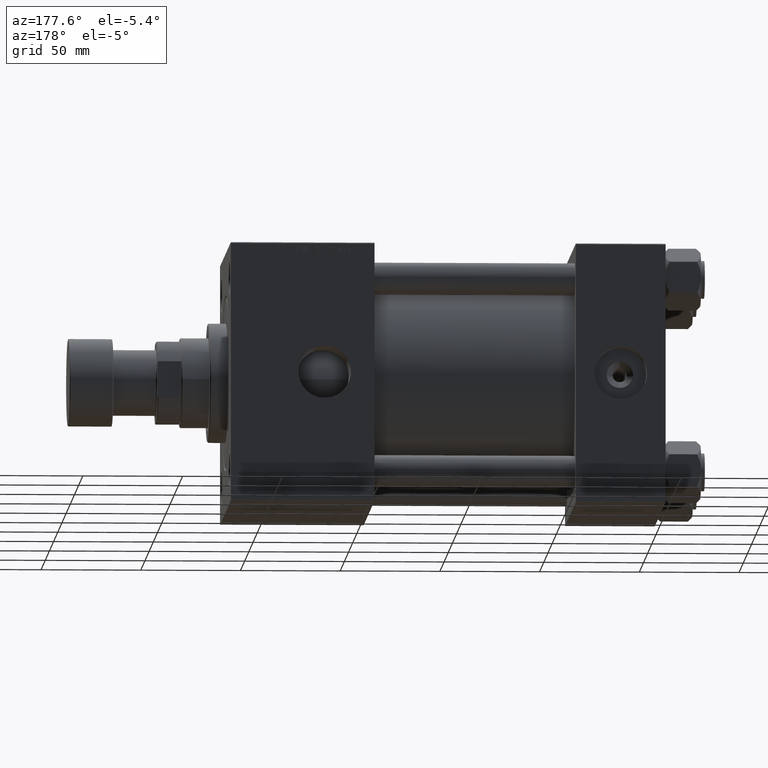
[diagram: clean part render]
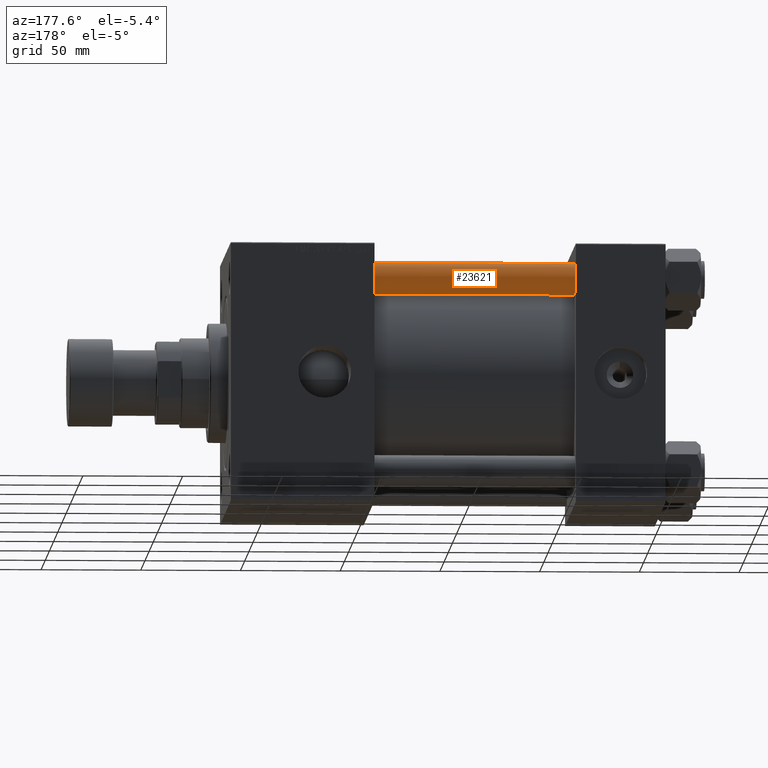
[diagram: same view with one face highlighted and labeled with its STEP entity id]
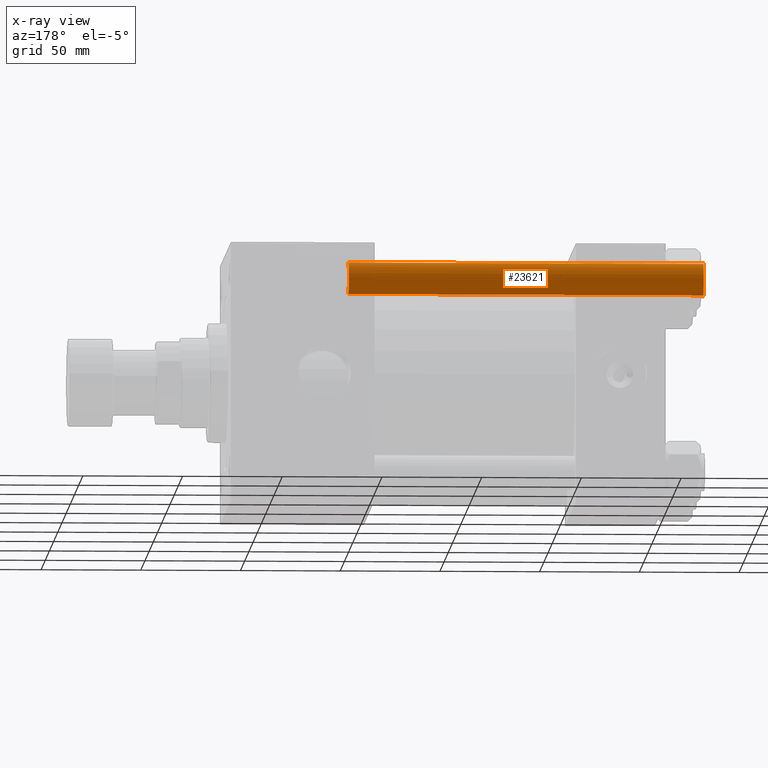
[diagram: x-ray of the same camera — body ghosted, the highlighted face saturated]
A machine part, auxiliary view. The second image highlights one B-rep face of the part: STEP entity #23621.
The next image is the same camera in x-ray: the body ghosted, the highlighted face saturated — about 0% of this face is hidden behind the body in this view.
In plain terms, the highlighted cylindrical surface (edge-blend (fillet) strip) has radius 8 mm, axis along (-1, 0, 0).
Its self-contained STEP definition (entity closure, byte-faithful):
#135 = CARTESIAN_POINT ( 'NONE',  ( 0.000000000000000000, 0.000000000000000000, 0.5000000000001392220 ) ) ;
#1865 = CIRCLE ( 'NONE', #13482, 8.000000000000000000 ) ;
#3379 = VERTEX_POINT ( 'NONE', #18921 ) ;
#4829 = VECTOR ( 'NONE', #24066, 1000.000000000000000 ) ;
#5172 = LINE ( 'NONE', #20969, #4829 ) ;
#5974 = CARTESIAN_POINT ( 'NONE',  ( -8.000000000000000000, 0.000000000000000000, 178.5000000000001137 ) ) ;
#6003 = VECTOR ( 'NONE', #22647, 1000.000000000000000 ) ;
#7097 = CYLINDRICAL_SURFACE ( 'NONE', #17241, 8.000000000000000000 ) ;
#7578 = CARTESIAN_POINT ( 'NONE',  ( 8.000000000000000000, 9.797174393178823685E-16, 178.5000000000001137 ) ) ;
#9905 = ORIENTED_EDGE ( 'NONE', *, *, #34943, .T. ) ;
#13482 = AXIS2_PLACEMENT_3D ( 'NONE', #135, #39774, #48060 ) ;
#15384 = DIRECTION ( 'NONE',  ( -0.000000000000000000, -0.000000000000000000, -1.000000000000000000 ) ) ;
#17241 = AXIS2_PLACEMENT_3D ( 'NONE', #35040, #15384, #26518 ) ;
#17310 = CIRCLE ( 'NONE', #26385, 8.000000000000000000 ) ;
#18921 = CARTESIAN_POINT ( 'NONE',  ( -8.000000000000000000, 0.000000000000000000, 0.5000000000001392220 ) ) ;
#19389 = VERTEX_POINT ( 'NONE', #5974 ) ;
#20375 = EDGE_LOOP ( 'NONE', ( #30144, #9905, #25095, #20974 ) ) ;
#20600 = CARTESIAN_POINT ( 'NONE',  ( 0.000000000000000000, 0.000000000000000000, 178.5000000000001137 ) ) ;
#20969 = CARTESIAN_POINT ( 'NONE',  ( -8.000000000000000000, 0.000000000000000000, 179.0000000000000000 ) ) ;
#20974 = ORIENTED_EDGE ( 'NONE', *, *, #27867, .F. ) ;
#22142 = LINE ( 'NONE', #42590, #6003 ) ;
#22647 = DIRECTION ( 'NONE',  ( -0.000000000000000000, -0.000000000000000000, -1.000000000000000000 ) ) ;
#23621 = ADVANCED_FACE ( 'NONE', ( #42583 ), #7097, .T. ) ;
#24066 = DIRECTION ( 'NONE',  ( -0.000000000000000000, -0.000000000000000000, -1.000000000000000000 ) ) ;
#24708 = VERTEX_POINT ( 'NONE', #7578 ) ;
#25095 = ORIENTED_EDGE ( 'NONE', *, *, #35616, .T. ) ;
#26385 = AXIS2_PLACEMENT_3D ( 'NONE', #20600, #36140, #48323 ) ;
#26518 = DIRECTION ( 'NONE',  ( -1.000000000000000000, 0.000000000000000000, 0.000000000000000000 ) ) ;
#27867 = EDGE_CURVE ( 'NONE', #19389, #3379, #5172, .T. ) ;
#29234 = EDGE_CURVE ( 'NONE', #19389, #24708, #17310, .T. ) ;
#30144 = ORIENTED_EDGE ( 'NONE', *, *, #29234, .T. ) ;
#34335 = VERTEX_POINT ( 'NONE', #40284 ) ;
#34943 = EDGE_CURVE ( 'NONE', #24708, #34335, #22142, .T. ) ;
#35040 = CARTESIAN_POINT ( 'NONE',  ( 0.000000000000000000, 0.000000000000000000, 179.0000000000000000 ) ) ;
#35616 = EDGE_CURVE ( 'NONE', #34335, #3379, #1865, .T. ) ;
#36140 = DIRECTION ( 'NONE',  ( 0.000000000000000000, 0.000000000000000000, -1.000000000000000000 ) ) ;
#39774 = DIRECTION ( 'NONE',  ( -0.000000000000000000, -0.000000000000000000, 1.000000000000000000 ) ) ;
#40284 = CARTESIAN_POINT ( 'NONE',  ( 8.000000000000000000, 9.797174393178823685E-16, 0.5000000000001392220 ) ) ;
#42583 = FACE_OUTER_BOUND ( 'NONE', #20375, .T. ) ;
#42590 = CARTESIAN_POINT ( 'NONE',  ( 8.000000000000000000, 9.797174393178823685E-16, 179.0000000000000000 ) ) ;
#48060 = DIRECTION ( 'NONE',  ( 1.000000000000000000, 0.000000000000000000, 0.000000000000000000 ) ) ;
#48323 = DIRECTION ( 'NONE',  ( 1.000000000000000000, 0.000000000000000000, 0.000000000000000000 ) ) ;